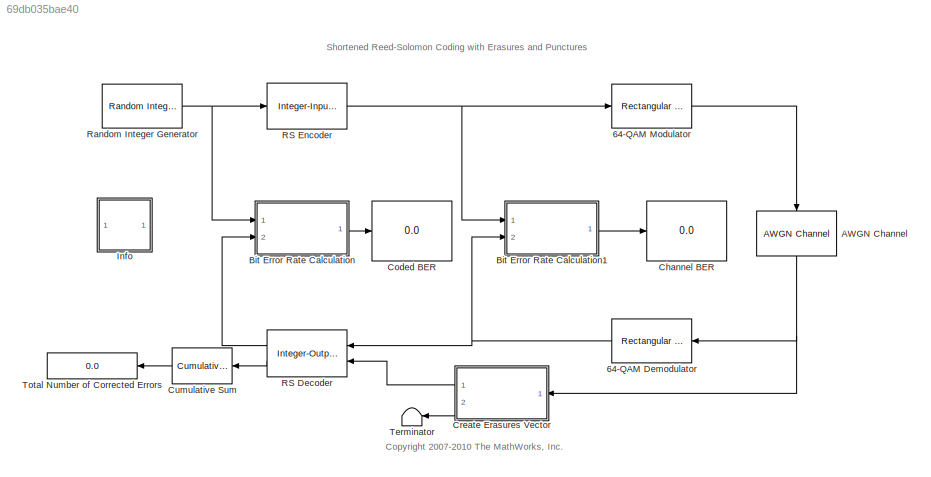
MODEL slx_69db035bae40
KIND model
CONFIG InitFcn = RS_TsUncoded = 1;   % Sample time\nRS_n = 63;  % Codeword length\nRS_k = 53;  % Message length\nRS_shortenLength = 35;  % Shortening length\nRS_numPuncs = 2;  % Number of punctures\nRS_MQAM = 64;  % QAM order\nRS_EbNoUncoded = 15;  % In dB\nRS_EbNoCoded = RS_EbNoUncoded + 10*log10( (RS_k - RS_shortenLength) / (RS_n - RS_shortenLength - RS_numPuncs) );  % Eb/No of coded signal, in dB\nRS_numBitsPerSymbol =...<+254ch>
CONFIG PreLoadFcn = RS_TsUncoded = 1;   % Sample time\nRS_n = 63;  % Codeword length\nRS_k = 53;  % Message length\nRS_shortenLength = 35;  % Shortening length\nRS_numPuncs = 2;  % Number of punctures\nRS_MQAM = 64;  % QAM order\nRS_EbNoUncoded = 15;  % In dB\nRS_EbNoCoded = RS_EbNoUncoded + 10*log10( (RS_k - RS_shortenLength) / (RS_n - RS_shortenLength - RS_numPuncs) );  % Eb/No of coded signal, in dB\nRS_numBitsPerSymbol =...<+254ch>
BLOCK [Reference] 64-QAM Demodulator  REF=commdigbbndam3/Rectangular QAM
Demodulator
Baseband
  AvgPow = 1
  Dec = Gray
  DecType = Hard decision
  M = RS_MQAM
  Mapping = [0:15]
  MinDist = 2
  OutType = Integer
  PeakPow = 1
  Ph = 0
  Ports = [1, 1]
  PowType = Min. distance between symbols
  SourceBlock = commdigbbndam3/Rectangular QAM\nDemodulator\nBaseband
  SourceType = Rectangular QAM Demodulator Baseband
  VarSource = Dialog
  Variance = 1
  denormFactorDTMode = Same word length as input
  denormFactorWordLen = 16
  derotateFactorDTMode = Same word length as input
  derotateFactorWordLen = 16
  outDtype1 = Inherit via internal rule
  outDtype2 = Inherit via internal rule
  prodOutDTMode = Inherit via internal rule
  prodOutOverflowMode = Wrap
  prodOutRoundingMode = Floor
  prodOutWordLen = 32
  sumDTMode = Inherit via internal rule
  sumWordLen = 32
BLOCK [Reference] 64-QAM Modulator  REF=commdigbbndam3/Rectangular QAM
Modulator
Baseband
  AvgPow = 1
  Enc = Gray
  InType = Integer
  M = RS_MQAM
  Mapping = [0:15]
  MinDist = 2
  PeakPow = 1
  Ph = 0
  Ports = [1, 1]
  PowType = Min. distance between symbols
  SourceBlock = commdigbbndam3/Rectangular QAM\nModulator\nBaseband
  SourceType = Rectangular QAM Modulator Baseband
  outDtype = double
  outFracLen = 15
  outFracLenMode = Best precision
  outUDDataType = sfix(16)
  outWordLen = 16
BLOCK [Reference] AWGN Channel  REF=commchan3/AWGN
Channel
  EbNodB = RS_EbNoCoded  % RS_EbNoUncoded + 10*log10( (RS_k - RS_shortenLength) / (RS_n - RS_shortenLength - RS_numPuncs) )
  EsNodB = 10
  InputProcessing = Columns as channels (frame based)
  Ports = [1, 1]
  Ps = RS_sigPower
  SNRdB = 10
  SourceBlock = commchan3/AWGN\nChannel
  SourceType = AWGN Channel
  Tsym = RS_TsymCoded  % RS_TsUncoded * (RS_k - RS_shortenLength) / (RS_n - RS_shortenLength - RS_numPuncs)
  UserDataPersistent = on
  bitsPerSym = RS_numBitsPerSymbol
  noiseMode = Signal to noise ratio  (Eb/No)
  seed = 67
  variance = 1
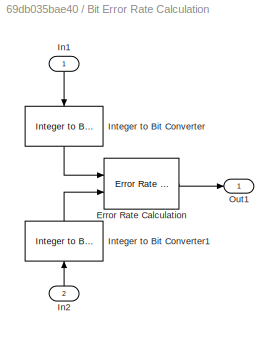
BLOCK [SubSystem] Bit Error Rate Calculation
  Ports = [2, 1]
  RequestExecContextInheritance = off
BLOCK [Reference] Bit Error Rate Calculation/Error Rate Calculation  REF=commsink2/Error Rate
Calculation
  N = 0
  PMode = Port
  Ports = [2, 1]
  RsMode2 = off
  SourceBlock = commsink2/Error Rate\nCalculation
  SourceType = Error Rate Calculation
  WsName = ErrorVec
  cp_mode = Entire frame
  maxBits = 1e8
  numErr = 1000
  st_delay = 0
  stop = on
  subframe = []
BLOCK [Inport] Bit Error Rate Calculation/In1
  IconDisplay = Port number
BLOCK [Inport] Bit Error Rate Calculation/In2
  IconDisplay = Port number
  Port = 2
BLOCK [Reference] Bit Error Rate Calculation/Integer to Bit Converter  REF=commutil2/Integer to Bit
Converter
  Ports = [1, 1]
  SourceBlock = commutil2/Integer to Bit\nConverter
  SourceType = Integer to Bit Converter
  bitOrder = MSB first
  nbits = 6
  outDtype = Inherit via internal rule
  signedInputValues = Unsigned
BLOCK [Reference] Bit Error Rate Calculation/Integer to Bit Converter1  REF=commutil2/Integer to Bit
Converter
  Ports = [1, 1]
  SourceBlock = commutil2/Integer to Bit\nConverter
  SourceType = Integer to Bit Converter
  bitOrder = MSB first
  nbits = 6
  outDtype = Inherit via internal rule
  signedInputValues = Unsigned
BLOCK [Outport] Bit Error Rate Calculation/Out1
  IconDisplay = Port number
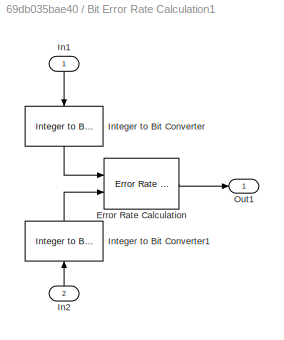
BLOCK [SubSystem] Bit Error Rate Calculation1
  Ports = [2, 1]
  RequestExecContextInheritance = off
BLOCK [Reference] Bit Error Rate Calculation1/Error Rate Calculation  REF=commsink2/Error Rate
Calculation
  N = 0
  PMode = Port
  Ports = [2, 1]
  RsMode2 = off
  SourceBlock = commsink2/Error Rate\nCalculation
  SourceType = Error Rate Calculation
  WsName = ErrorVec
  cp_mode = Entire frame
  maxBits = 1e6
  numErr = 100
  st_delay = 0
  stop = off
  subframe = []
BLOCK [Inport] Bit Error Rate Calculation1/In1
  IconDisplay = Port number
BLOCK [Inport] Bit Error Rate Calculation1/In2
  IconDisplay = Port number
  Port = 2
BLOCK [Reference] Bit Error Rate Calculation1/Integer to Bit Converter  REF=commutil2/Integer to Bit
Converter
  Ports = [1, 1]
  SourceBlock = commutil2/Integer to Bit\nConverter
  SourceType = Integer to Bit Converter
  bitOrder = MSB first
  nbits = 6
  outDtype = Inherit via internal rule
  signedInputValues = Unsigned
BLOCK [Reference] Bit Error Rate Calculation1/Integer to Bit Converter1  REF=commutil2/Integer to Bit
Converter
  Ports = [1, 1]
  SourceBlock = commutil2/Integer to Bit\nConverter
  SourceType = Integer to Bit Converter
  bitOrder = MSB first
  nbits = 6
  outDtype = Inherit via internal rule
  signedInputValues = Unsigned
BLOCK [Outport] Bit Error Rate Calculation1/Out1
  IconDisplay = Port number
BLOCK [Display] Channel BER
  Decimation = 1
  Ports = [1]
BLOCK [Display] Coded BER
  Decimation = 1
  Ports = [1]
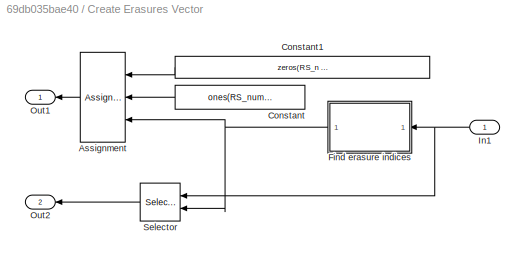
BLOCK [SubSystem] Create Erasures Vector
  Ports = [1, 2]
  RequestExecContextInheritance = off
BLOCK [Assignment] Create Erasures Vector/Assignment
  IndexOptions = Index vector (port),Index vector (dialog)
  Indices = 1,1
  NumberOfDimensions = 2
  OutputSizes = 1,1
  Ports = [3, 1]
BLOCK [Constant] Create Erasures Vector/Constant
  FramePeriod = RS_TsUncoded * (RS_k - RS_shortenLength)
  SamplingMode = Frame based
  Value = ones(RS_numErasures, 1)
  VectorParams1D = off
BLOCK [Constant] Create Erasures Vector/Constant1
  FramePeriod = RS_TsUncoded * (RS_k - RS_shortenLength)
  SamplingMode = Frame based
  Value = zeros(RS_n - RS_shortenLength - RS_numPuncs, 1)
  VectorParams1D = off
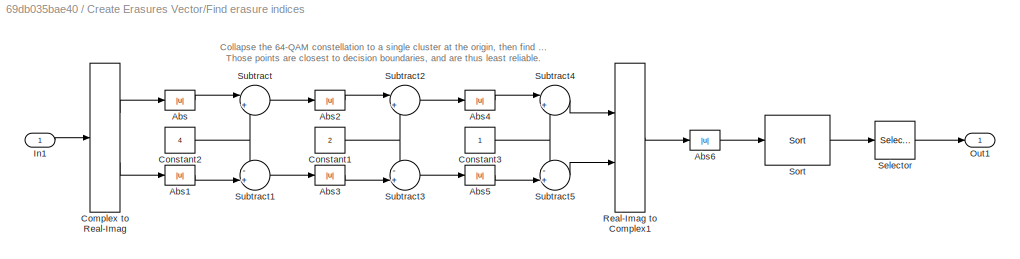
BLOCK [SubSystem] Create Erasures Vector/Find erasure indices
  Ports = [1, 1]
  RequestExecContextInheritance = off
BLOCK [Abs] Create Erasures Vector/Find erasure indices/Abs
  SaturateOnIntegerOverflow = off
BLOCK [Abs] Create Erasures Vector/Find erasure indices/Abs1
  SaturateOnIntegerOverflow = off
BLOCK [Abs] Create Erasures Vector/Find erasure indices/Abs2
  SaturateOnIntegerOverflow = off
BLOCK [Abs] Create Erasures Vector/Find erasure indices/Abs3
  SaturateOnIntegerOverflow = off
BLOCK [Abs] Create Erasures Vector/Find erasure indices/Abs4
  SaturateOnIntegerOverflow = off
BLOCK [Abs] Create Erasures Vector/Find erasure indices/Abs5
  SaturateOnIntegerOverflow = off
BLOCK [Abs] Create Erasures Vector/Find erasure indices/Abs6
  SaturateOnIntegerOverflow = off
BLOCK [ComplexToRealImag] Create Erasures Vector/Find erasure indices/Complex to Real-Imag
  Ports = [1, 2]
BLOCK [Constant] Create Erasures Vector/Find erasure indices/Constant1
  FramePeriod = RS_TsUncoded * (RS_k - RS_shortenLength)
  SamplingMode = Frame based
  Value = 2
  VectorParams1D = off
BLOCK [Constant] Create Erasures Vector/Find erasure indices/Constant2
  FramePeriod = RS_TsUncoded * (RS_k - RS_shortenLength)
  SamplingMode = Frame based
  Value = 4
  VectorParams1D = off
BLOCK [Constant] Create Erasures Vector/Find erasure indices/Constant3
  FramePeriod = RS_TsUncoded * (RS_k - RS_shortenLength)
  SamplingMode = Frame based
  VectorParams1D = off
BLOCK [Inport] Create Erasures Vector/Find erasure indices/In1
  IconDisplay = Port number
BLOCK [Outport] Create Erasures Vector/Find erasure indices/Out1
  IconDisplay = Port number
BLOCK [RealImagToComplex] Create Erasures Vector/Find erasure indices/Real-Imag to Complex1
  Ports = [2, 1]
BLOCK [Selector] Create Erasures Vector/Find erasure indices/Selector
  IndexOptions = Index vector (dialog),Index vector (dialog)
  Indices = [63-35-6-2+1:63-35-2],1
  InputPortWidth = 3
  NumberOfDimensions = 2
  OutputSizes = 1,1
  Ports = [1, 1]
BLOCK [Reference] Create Erasures Vector/Find erasure indices/Sort  REF=dspstat3/Sort
  LockScale = off
  Ports = [1, 1]
  SourceBlock = dspstat3/Sort
  SourceType = Sort
  accumDataTypeStr = Inherit: Same as product output
  accumFracLength = 30
  accumLastDataTypeStr = Inherit: Same as product output
  accumMode = Same as product output
  accumWordLength = 32
  additionalParams = off
  allowOverrides = on
  dir = Ascending
  otype = Index
  overflowMode = off
  prodOutputDataTypeStr = Inherit: Same as input
  prodOutputFracLength = 30
  prodOutputLastDataTypeStr = Inherit: Same as input
  prodOutputMode = Same as input
  prodOutputWordLength = 32
  roundingMode = Floor
  sortAlg = Quick sort
BLOCK [Sum] Create Erasures Vector/Find erasure indices/Subtract
  IconShape = round
  InputSameDT = off
  Inputs = |+-
  OutDataTypeStr = Inherit: Inherit via internal rule
  Ports = [2, 1]
  SaturateOnIntegerOverflow = off
BLOCK [Sum] Create Erasures Vector/Find erasure indices/Subtract1
  IconShape = round
  InputSameDT = off
  Inputs = -+|
  OutDataTypeStr = Inherit: Inherit via internal rule
  Ports = [2, 1]
  SaturateOnIntegerOverflow = off
BLOCK [Sum] Create Erasures Vector/Find erasure indices/Subtract2
  IconShape = round
  InputSameDT = off
  Inputs = |+-
  OutDataTypeStr = Inherit: Inherit via internal rule
  Ports = [2, 1]
  SaturateOnIntegerOverflow = off
BLOCK [Sum] Create Erasures Vector/Find erasure indices/Subtract3
  IconShape = round
  InputSameDT = off
  Inputs = -+|
  OutDataTypeStr = Inherit: Inherit via internal rule
  Ports = [2, 1]
  SaturateOnIntegerOverflow = off
BLOCK [Sum] Create Erasures Vector/Find erasure indices/Subtract4
  IconShape = round
  InputSameDT = off
  Inputs = |+-
  OutDataTypeStr = Inherit: Inherit via internal rule
  Ports = [2, 1]
  SaturateOnIntegerOverflow = off
BLOCK [Sum] Create Erasures Vector/Find erasure indices/Subtract5
  IconShape = round
  InputSameDT = off
  Inputs = -+|
  OutDataTypeStr = Inherit: Inherit via internal rule
  Ports = [2, 1]
  SaturateOnIntegerOverflow = off
BLOCK [Inport] Create Erasures Vector/In1
  IconDisplay = Port number
BLOCK [Outport] Create Erasures Vector/Out1
  IconDisplay = Port number
BLOCK [Outport] Create Erasures Vector/Out2
  IconDisplay = Port number
  Port = 2
BLOCK [Selector] Create Erasures Vector/Selector
  IndexOptions = Index vector (port),Index vector (dialog)
  Indices = [1 3],1
  InputPortWidth = 3
  NumberOfDimensions = 2
  OutputSizes = 1,1
  Ports = [2, 1]
BLOCK [Reference] Cumulative Sum  REF=dspmathops/Cumulative
Sum
  InputProcessing = Columns as channels (frame based)
  LockScale = off
  Ports = [1, 1]
  SourceBlock = dspmathops/Cumulative\nSum
  SourceType = Cumulative Sum
  UserDataPersistent = on
  accumDataTypeStr = Inherit: Same as input
  accumFracLength = 30
  accumLastDataTypeStr = Inherit: Same as input
  accumMode = Same as input
  accumWordLength = 32
  dim = Channels (running sum)
  outputDataTypeStr = Inherit: Same as accumulator
  outputFracLength = 15
  outputLastDataTypeStr = Inherit: Same as accumulator
  outputMax = []
  outputMin = []
  outputMode = Same as accumulator
  outputWordLength = 16
  overflowMode = off
  reset_popup = None
  roundingMode = Floor
BLOCK [SubSystem] Info
  AncestorBlock = commblksprivate/Info
  OpenFcn = helpview([docroot '/toolbox/comm/comm.map'], 'doc_rs_shortened')
  Ports = []
  RequestExecContextInheritance = off
BLOCK [Reference] RS Decoder  REF=commblkcod2/Integer-Output
RS Decoder
  Ports = [2, 2]
  SourceBlock = commblkcod2/Integer-Output\nRS Decoder
  SourceType = Integer-Output RS Decoder
  genPoly = rsgenpoly(7,3)
  k = RS_k - RS_shortenLength
  n = RS_n - RS_shortenLength
  prPoly = de2bi(primpoly(6, 'nodisplay'), 'left-msb')
  punctVec = [ones(RS_n - RS_k - RS_numPuncs,1); zeros(RS_numPuncs,1)]
  showNumErr = on
  specErasurePort = on
  specGenPoly = off
  specPrimPoly = on
  specPuncture = on
BLOCK [Reference] RS Encoder  REF=commblkcod2/Integer-Input
RS Encoder
  Ports = [1, 1]
  SourceBlock = commblkcod2/Integer-Input\nRS Encoder
  SourceType = Integer-Input RS Encoder
  genPoly = rsgenpoly(7,3)
  k = RS_k - RS_shortenLength
  n = RS_n - RS_shortenLength
  prPoly = de2bi(primpoly(6, 'nodisplay'), 'left-msb')
  punctVec = [ones(RS_n - RS_k - RS_numPuncs,1); zeros(RS_numPuncs,1)]
  specGenPoly = off
  specPrimPoly = on
  specPuncture = on
BLOCK [Reference] Random Integer Generator  REF=commrandsrc2/Random Integer
Generator
  Ports = [0, 1]
  SourceBlock = commrandsrc2/Random Integer\nGenerator
  SourceType = Random Integer Generator
  Ts = RS_TsUncoded
  frameBased = on
  mul = RS_MQAM
  orient = off
  outDataType = double
  sampPerFrame = RS_k - RS_shortenLength
  seed = 37
BLOCK [Terminator] Terminator
BLOCK [Display] Total Number of Corrected Errors
  Decimation = 1
  Ports = [1]
ANNOTATION (root): <copyright redacted>
ANNOTATION (root): Shortened Reed-Solomon Coding with Erasures and Punctures
ANNOTATION Create Erasures Vector/Find erasure indices: Collapse the 64-QAM constellation to a single cluster at the origin, then find the indices of the largest amplitude points. Those points are closest to decision boundaries, and are thus least reliable.
NET 64-QAM Demodulator:1 -> Bit Error Rate Calculation1:2, RS Decoder:1
LINE 64-QAM Modulator:1 -> AWGN Channel:1
NET AWGN Channel:1 -> 64-QAM Demodulator:1, Create Erasures Vector:1
LINE Bit Error Rate Calculation/Error Rate Calculation:1 -> Bit Error Rate Calculation/Out1:1
LINE Bit Error Rate Calculation/In1:1 -> Bit Error Rate Calculation/Integer to Bit Converter:1
LINE Bit Error Rate Calculation/In2:1 -> Bit Error Rate Calculation/Integer to Bit Converter1:1
LINE Bit Error Rate Calculation/Integer to Bit Converter1:1 -> Bit Error Rate Calculation/Error Rate Calculation:2
LINE Bit Error Rate Calculation/Integer to Bit Converter:1 -> Bit Error Rate Calculation/Error Rate Calculation:1
LINE Bit Error Rate Calculation1/Error Rate Calculation:1 -> Bit Error Rate Calculation1/Out1:1
LINE Bit Error Rate Calculation1/In1:1 -> Bit Error Rate Calculation1/Integer to Bit Converter:1
LINE Bit Error Rate Calculation1/In2:1 -> Bit Error Rate Calculation1/Integer to Bit Converter1:1
LINE Bit Error Rate Calculation1/Integer to Bit Converter1:1 -> Bit Error Rate Calculation1/Error Rate Calculation:2
LINE Bit Error Rate Calculation1/Integer to Bit Converter:1 -> Bit Error Rate Calculation1/Error Rate Calculation:1
LINE Bit Error Rate Calculation1:1 -> Channel BER:1
LINE Bit Error Rate Calculation:1 -> Coded BER:1
LINE Create Erasures Vector/Assignment:1 -> Create Erasures Vector/Out1:1
LINE Create Erasures Vector/Constant1:1 -> Create Erasures Vector/Assignment:1
LINE Create Erasures Vector/Constant:1 -> Create Erasures Vector/Assignment:2
LINE Create Erasures Vector/Find erasure indices/Abs1:1 -> Create Erasures Vector/Find erasure indices/Subtract1:2
LINE Create Erasures Vector/Find erasure indices/Abs2:1 -> Create Erasures Vector/Find erasure indices/Subtract2:1
LINE Create Erasures Vector/Find erasure indices/Abs3:1 -> Create Erasures Vector/Find erasure indices/Subtract3:2
LINE Create Erasures Vector/Find erasure indices/Abs4:1 -> Create Erasures Vector/Find erasure indices/Subtract4:1
LINE Create Erasures Vector/Find erasure indices/Abs5:1 -> Create Erasures Vector/Find erasure indices/Subtract5:2
LINE Create Erasures Vector/Find erasure indices/Abs6:1 -> Create Erasures Vector/Find erasure indices/Sort:1
LINE Create Erasures Vector/Find erasure indices/Abs:1 -> Create Erasures Vector/Find erasure indices/Subtract:1
LINE Create Erasures Vector/Find erasure indices/Complex to Real-Imag:1 -> Create Erasures Vector/Find erasure indices/Abs:1
LINE Create Erasures Vector/Find erasure indices/Complex to Real-Imag:2 -> Create Erasures Vector/Find erasure indices/Abs1:1
NET Create Erasures Vector/Find erasure indices/Constant1:1 -> Create Erasures Vector/Find erasure indices/Subtract2:2, Create Erasures Vector/Find erasure indices/Subtract3:1
NET Create Erasures Vector/Find erasure indices/Constant2:1 -> Create Erasures Vector/Find erasure indices/Subtract1:1, Create Erasures Vector/Find erasure indices/Subtract:2
NET Create Erasures Vector/Find erasure indices/Constant3:1 -> Create Erasures Vector/Find erasure indices/Subtract4:2, Create Erasures Vector/Find erasure indices/Subtract5:1
LINE Create Erasures Vector/Find erasure indices/In1:1 -> Create Erasures Vector/Find erasure indices/Complex to Real-Imag:1
LINE Create Erasures Vector/Find erasure indices/Real-Imag to Complex1:1 -> Create Erasures Vector/Find erasure indices/Abs6:1
LINE Create Erasures Vector/Find erasure indices/Selector:1 -> Create Erasures Vector/Find erasure indices/Out1:1
LINE Create Erasures Vector/Find erasure indices/Sort:1 -> Create Erasures Vector/Find erasure indices/Selector:1
LINE Create Erasures Vector/Find erasure indices/Subtract1:1 -> Create Erasures Vector/Find erasure indices/Abs3:1
LINE Create Erasures Vector/Find erasure indices/Subtract2:1 -> Create Erasures Vector/Find erasure indices/Abs4:1
LINE Create Erasures Vector/Find erasure indices/Subtract3:1 -> Create Erasures Vector/Find erasure indices/Abs5:1
LINE Create Erasures Vector/Find erasure indices/Subtract4:1 -> Create Erasures Vector/Find erasure indices/Real-Imag to Complex1:1
LINE Create Erasures Vector/Find erasure indices/Subtract5:1 -> Create Erasures Vector/Find erasure indices/Real-Imag to Complex1:2
LINE Create Erasures Vector/Find erasure indices/Subtract:1 -> Create Erasures Vector/Find erasure indices/Abs2:1
NET Create Erasures Vector/Find erasure indices:1 -> Create Erasures Vector/Assignment:3, Create Erasures Vector/Selector:2
NET Create Erasures Vector/In1:1 -> Create Erasures Vector/Find erasure indices:1, Create Erasures Vector/Selector:1
LINE Create Erasures Vector/Selector:1 -> Create Erasures Vector/Out2:1
LINE Create Erasures Vector:1 -> RS Decoder:2
LINE Create Erasures Vector:2 -> Terminator:1
LINE Cumulative Sum:1 -> Total Number of Corrected Errors:1
LINE RS Decoder:1 -> Bit Error Rate Calculation:2
LINE RS Decoder:2 -> Cumulative Sum:1
NET RS Encoder:1 -> 64-QAM Modulator:1, Bit Error Rate Calculation1:1
NET Random Integer Generator:1 -> Bit Error Rate Calculation:1, RS Encoder:1
note: NET lines group one-source signal fan-out (src -> all destinations, sorted); 1:1 wires keep LINE
